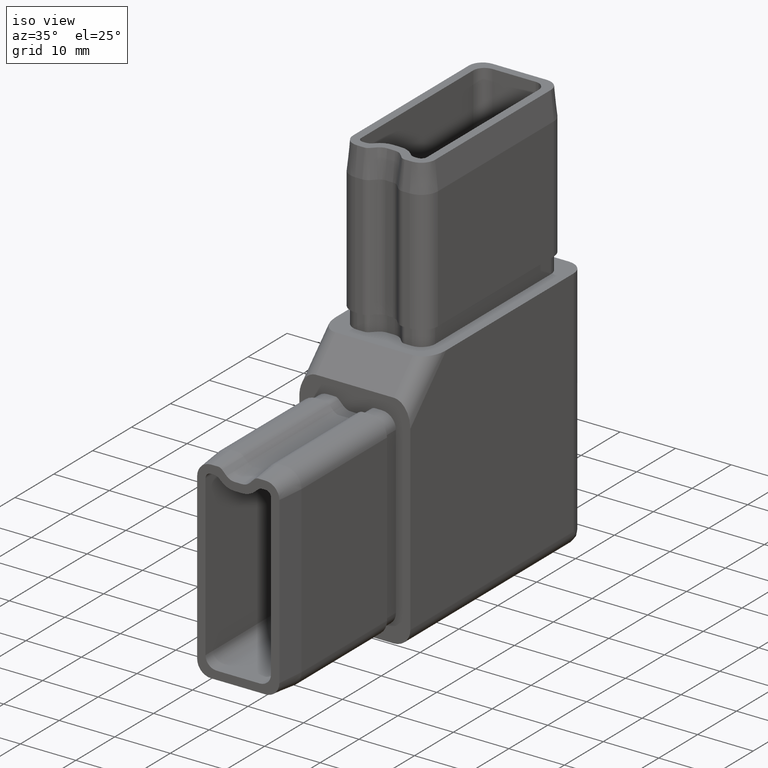
[diagram: clean part render]
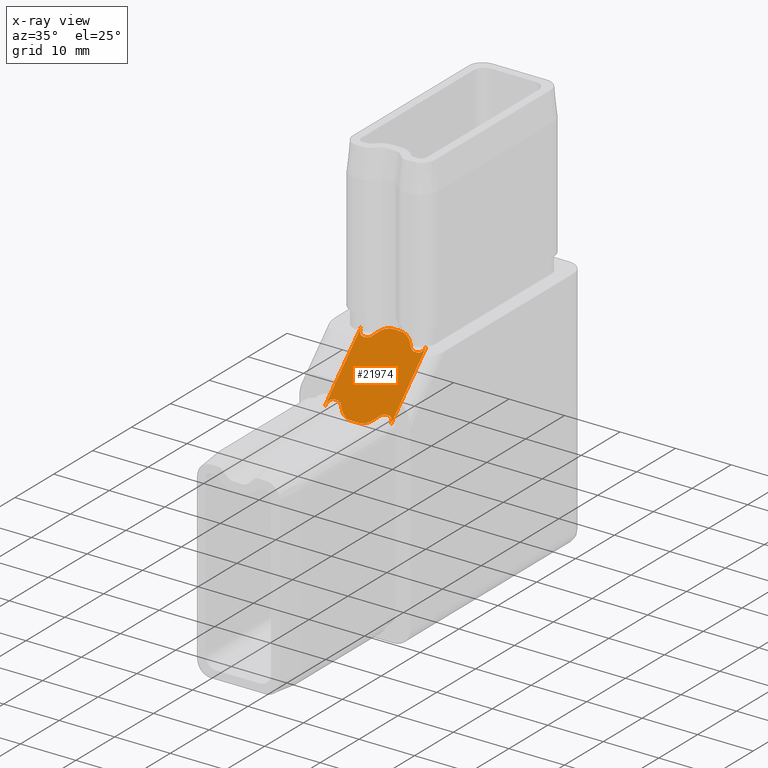
[diagram: x-ray — body ghosted, one internal face saturated and labeled with its STEP entity id]
A machine part, iso view, then the same camera in x-ray: the body is ghosted and one INTERNAL B-rep face — a face not visible from any outside direction — is saturated and labeled: STEP entity #21974.
In plain terms, the highlighted planar face has unit normal (0, 0.7071, -0.7071).
Its self-contained STEP definition (entity closure, byte-faithful):
#25 = CARTESIAN_POINT ( 'NONE',  ( -0.6804040507106343700, -22.50000000000000000, 11.70172439427027700 ) ) ;
#68 = CARTESIAN_POINT ( 'NONE',  ( -1.621067907937050200, -11.70172439427028300, 22.49999999999999300 ) ) ;
#142 = VERTEX_POINT ( 'NONE', #11667 ) ;
#257 = VERTEX_POINT ( 'NONE', #12083 ) ;
#291 = DIRECTION ( 'NONE',  ( -1.000000000000000000, 0.0000000000000000000, 0.0000000000000000000 ) ) ;
#301 = CARTESIAN_POINT ( 'NONE',  ( 3.155277784863547400, -12.72685066011736200, 21.47487373415291900 ) ) ;
#310 = CARTESIAN_POINT ( 'NONE',  ( -2.490127992601655300, -12.06170086785547100, 22.14002352641480400 ) ) ;
#371 = DIRECTION ( 'NONE',  ( 0.0000000000000000000, 0.7071067811865465700, -0.7071067811865485700 ) ) ;
#447 = LINE ( 'NONE', #10027, #1993 ) ;
#773 = CARTESIAN_POINT ( 'NONE',  ( 4.046605815208793400, -20.80172439427031300, 13.39999999999999300 ) ) ;
#869 = EDGE_LOOP ( 'NONE', ( #2413, #22524, #17498, #4890, #16082, #25160, #22806, #15998, #1588, #6562, #19176, #6417, #16338, #19762, #24643, #20544, #14632, #12390, #19595, #18794, #5408, #14240, #21887, #22821 ) ) ;
#1073 = CARTESIAN_POINT ( 'NONE',  ( -4.900000000000001200, -20.80172439427030500, 13.39999999999999700 ) ) ;
#1356 = DIRECTION ( 'NONE',  ( -0.0000000000000000000, 0.7071067811865485700, 0.7071067811865465700 ) ) ;
#1394 = VERTEX_POINT ( 'NONE', #22043 ) ;
#1423 = CARTESIAN_POINT ( 'NONE',  ( 9.999999999999991100, -20.80172439427035900, 13.39999999999994000 ) ) ;
#1528 = VECTOR ( 'NONE', #1684, 1000.000000000000000 ) ;
#1549 = FACE_OUTER_BOUND ( 'NONE', #869, .T. ) ;
#1588 = ORIENTED_EDGE ( 'NONE', *, *, #2659, .T. ) ;
#1592 = VECTOR ( 'NONE', #16764, 1000.000000000000000 ) ;
#1596 = VECTOR ( 'NONE', #9726, 1000.000000000000000 ) ;
#1684 = DIRECTION ( 'NONE',  ( 1.000000000000000000, -3.852778949292155600E-015, -3.852778949292144500E-015 ) ) ;
#1755 =( BOUNDED_CURVE ( )  B_SPLINE_CURVE ( 3, ( #22926, #7392, #13044, #20734 ),
 .UNSPECIFIED., .F., .T. ) 
 B_SPLINE_CURVE_WITH_KNOTS ( ( 4, 4 ),
 ( 0.0000000000000000000, 0.7853981633974466100 ),
 .UNSPECIFIED. ) 
 CURVE ( )  GEOMETRIC_REPRESENTATION_ITEM ( )  RATIONAL_B_SPLINE_CURVE ( ( 1.000000000000000000, 0.9492530216741912300, 0.9492530216741912300, 1.000000000000000000 ) ) 
 REPRESENTATION_ITEM ( '' )  );
#1846 = EDGE_CURVE ( 'NONE', #21841, #257, #23861, .T. ) ;
#1882 = EDGE_CURVE ( 'NONE', #4354, #12554, #16616, .T. ) ;
#1947 = CARTESIAN_POINT ( 'NONE',  ( -4.046605815208791600, -20.80172439427030900, 13.39999999999999300 ) ) ;
#1993 = VECTOR ( 'NONE', #17848, 1000.000000000000000 ) ;
#2301 = CARTESIAN_POINT ( 'NONE',  ( 5.900000000000002100, -21.21593795664339800, 12.98578643762690100 ) ) ;
#2319 = VECTOR ( 'NONE', #15598, 1000.000000000000000 ) ;
#2406 = EDGE_CURVE ( 'NONE', #23328, #7196, #9807, .T. ) ;
#2413 = ORIENTED_EDGE ( 'NONE', *, *, #13156, .F. ) ;
#2505 = CARTESIAN_POINT ( 'NONE',  ( 3.674151493209678600, -13.24572436846349000, 20.95600002580679100 ) ) ;
#2545 = CARTESIAN_POINT ( 'NONE',  ( 4.449747468305827300, -13.39999999999999700, 20.80172439427028400 ) ) ;
#2556 = CARTESIAN_POINT ( 'NONE',  ( -4.449747468305827300, -20.80172439427030900, 13.39999999999999500 ) ) ;
#2659 = EDGE_CURVE ( 'NONE', #257, #14278, #5185, .T. ) ;
#2859 =( BOUNDED_CURVE ( )  B_SPLINE_CURVE ( 3, ( #4838, #16293, #24161, #1073 ),
 .UNSPECIFIED., .F., .F. ) 
 B_SPLINE_CURVE_WITH_KNOTS ( ( 4, 4 ),
 ( 1.570796326794896600, 3.141592653589792200 ),
 .UNSPECIFIED. ) 
 CURVE ( )  GEOMETRIC_REPRESENTATION_ITEM ( )  RATIONAL_B_SPLINE_CURVE ( ( 1.000000000000000000, 0.8047378541243652700, 0.8047378541243652700, 1.000000000000000000 ) ) 
 REPRESENTATION_ITEM ( '' )  );
#3042 = EDGE_CURVE ( 'NONE', #13627, #12554, #11622, .T. ) ;
#3180 =( BOUNDED_CURVE ( )  B_SPLINE_CURVE ( 3, ( #20448, #20522, #773, #16669 ),
 .UNSPECIFIED., .F., .F. ) 
 B_SPLINE_CURVE_WITH_KNOTS ( ( 4, 4 ),
 ( 2.356194490192346600, 3.141592653589793100 ),
 .UNSPECIFIED. ) 
 CURVE ( )  GEOMETRIC_REPRESENTATION_ITEM ( )  RATIONAL_B_SPLINE_CURVE ( ( 1.000000000000000000, 0.9492530216741912300, 0.9492530216741912300, 1.000000000000000000 ) ) 
 REPRESENTATION_ITEM ( '' )  );
#3828 = CARTESIAN_POINT ( 'NONE',  ( -0.0000000000000000000, -11.70172439427028300, 22.49999999999999600 ) ) ;
#3900 = CARTESIAN_POINT ( 'NONE',  ( 5.900000000000000400, -17.10086219713512200, 17.10086219713517200 ) ) ;
#4282 = CARTESIAN_POINT ( 'NONE',  ( 5.485786437626906300, -13.40000000000000200, 20.80172439427028100 ) ) ;
#4284 = CARTESIAN_POINT ( 'NONE',  ( 3.389087296526010800, -21.24106422249049000, 12.96066017177981400 ) ) ;
#4354 = VERTEX_POINT ( 'NONE', #13589 ) ;
#4458 = CARTESIAN_POINT ( 'NONE',  ( 4.449747468305827300, -13.39999999999999700, 20.80172439427028400 ) ) ;
#4607 = VERTEX_POINT ( 'NONE', #2556 ) ;
#4688 = LINE ( 'NONE', #15036, #24874 ) ;
#4763 = EDGE_CURVE ( 'NONE', #23140, #11035, #20126, .T. ) ;
#4824 = CARTESIAN_POINT ( 'NONE',  ( -4.900000000000001200, -13.40000000000000200, 20.80172439427027700 ) ) ;
#4838 = CARTESIAN_POINT ( 'NONE',  ( -5.900000000000000400, -21.80172439427030500, 12.39999999999999700 ) ) ;
#4861 = AXIS2_PLACEMENT_3D ( 'NONE', #23799, #371, #291 ) ;
#4890 = ORIENTED_EDGE ( 'NONE', *, *, #23095, .F. ) ;
#5185 =( BOUNDED_CURVE ( )  B_SPLINE_CURVE ( 3, ( #5980, #21774, #19895, #18089 ),
 .UNSPECIFIED., .F., .F. ) 
 B_SPLINE_CURVE_WITH_KNOTS ( ( 4, 4 ),
 ( 3.141592653589793100, 3.926990816987242700 ),
 .UNSPECIFIED. ) 
 CURVE ( )  GEOMETRIC_REPRESENTATION_ITEM ( )  RATIONAL_B_SPLINE_CURVE ( ( 1.000000000000000000, 0.9492530216741910100, 0.9492530216741910100, 1.000000000000000000 ) ) 
 REPRESENTATION_ITEM ( '' )  );
#5402 = CARTESIAN_POINT ( 'NONE',  ( 3.389087296526011300, -12.96066017177982100, 21.24106422249046100 ) ) ;
#5408 = ORIENTED_EDGE ( 'NONE', *, *, #13492, .F. ) ;
#5554 = CARTESIAN_POINT ( 'NONE',  ( 3.155277784863547400, -12.72685066011736200, 21.47487373415291900 ) ) ;
#5589 = VERTEX_POINT ( 'NONE', #23464 ) ;
#5604 = CARTESIAN_POINT ( 'NONE',  ( -3.389087296526008200, -21.24106422249049000, 12.96066017177981400 ) ) ;
#5820 = VECTOR ( 'NONE', #15005, 1000.000000000000100 ) ;
#5980 = CARTESIAN_POINT ( 'NONE',  ( -4.449747468305827300, -13.40000000000000000, 20.80172439427027700 ) ) ;
#6417 = ORIENTED_EDGE ( 'NONE', *, *, #3042, .F. ) ;
#6562 = ORIENTED_EDGE ( 'NONE', *, *, #16766, .T. ) ;
#7196 = VERTEX_POINT ( 'NONE', #5402 ) ;
#7392 = CARTESIAN_POINT ( 'NONE',  ( 1.621067907937049600, -22.50000000000002800, 11.70172439427027700 ) ) ;
#7419 = LINE ( 'NONE', #22576, #1592 ) ;
#7484 = CARTESIAN_POINT ( 'NONE',  ( -3.155277784863550500, -21.47487373415294700, 12.72685066011735900 ) ) ;
#7527 = LINE ( 'NONE', #3900, #24020 ) ;
#7817 = LINE ( 'NONE', #15517, #2319 ) ;
#8215 = CARTESIAN_POINT ( 'NONE',  ( 5.900000000000000400, -12.40000000000000200, 21.80172439427027700 ) ) ;
#8264 =( BOUNDED_CURVE ( )  B_SPLINE_CURVE ( 3, ( #15263, #1947, #19204, #5604 ),
 .UNSPECIFIED., .F., .T. ) 
 B_SPLINE_CURVE_WITH_KNOTS ( ( 4, 4 ),
 ( 3.141592653589793100, 3.926990816987241000 ),
 .UNSPECIFIED. ) 
 CURVE ( )  GEOMETRIC_REPRESENTATION_ITEM ( )  RATIONAL_B_SPLINE_CURVE ( ( 1.000000000000000000, 0.9492530216741912300, 0.9492530216741912300, 1.000000000000000000 ) ) 
 REPRESENTATION_ITEM ( '' )  );
#8701 = EDGE_CURVE ( 'NONE', #17777, #11463, #447, .T. ) ;
#9295 = CARTESIAN_POINT ( 'NONE',  ( 6.686192881254304300, -17.94395863776226800, 16.25776575650802200 ) ) ;
#9311 = CARTESIAN_POINT ( 'NONE',  ( 9.999999999999952000, -13.39999999999994500, 20.80172439427033700 ) ) ;
#9579 = CARTESIAN_POINT ( 'NONE',  ( 0.6804040507106343700, -11.70172439427028300, 22.49999999999999300 ) ) ;
#9726 = DIRECTION ( 'NONE',  ( -1.000000000000000000, 0.0000000000000000000, -0.0000000000000000000 ) ) ;
#9807 = LINE ( 'NONE', #17154, #5820 ) ;
#9865 = VERTEX_POINT ( 'NONE', #19673 ) ;
#9997 = EDGE_CURVE ( 'NONE', #15854, #9865, #4688, .T. ) ;
#10027 = CARTESIAN_POINT ( 'NONE',  ( 10.00000000000014400, -13.40000000000006300, 20.80172439427021700 ) ) ;
#10347 = EDGE_CURVE ( 'NONE', #15854, #24625, #2859, .T. ) ;
#10732 = CARTESIAN_POINT ( 'NONE',  ( -5.900000000000000400, -12.98578643762690800, 21.21593795664336900 ) ) ;
#10736 = CARTESIAN_POINT ( 'NONE',  ( -1.621067907937050200, -22.50000000000002800, 11.70172439427027600 ) ) ;
#10824 = CARTESIAN_POINT ( 'NONE',  ( -2.490127992601655300, -22.14002352641482900, 12.06170086785546600 ) ) ;
#11035 = VERTEX_POINT ( 'NONE', #4284 ) ;
#11463 = VERTEX_POINT ( 'NONE', #15450 ) ;
#11466 = CARTESIAN_POINT ( 'NONE',  ( 1.621067907937049600, -11.70172439427028300, 22.49999999999999300 ) ) ;
#11622 = LINE ( 'NONE', #3828, #20171 ) ;
#11667 = CARTESIAN_POINT ( 'NONE',  ( -3.389087296526008200, -21.24106422249049000, 12.96066017177981400 ) ) ;
#11948 = LINE ( 'NONE', #1423, #1528 ) ;
#12020 = PLANE ( 'NONE',  #4861 ) ;
#12083 = CARTESIAN_POINT ( 'NONE',  ( -4.449747468305827300, -13.40000000000000000, 20.80172439427027700 ) ) ;
#12106 = EDGE_CURVE ( 'NONE', #5589, #20054, #7527, .T. ) ;
#12390 = ORIENTED_EDGE ( 'NONE', *, *, #12106, .T. ) ;
#12392 = VERTEX_POINT ( 'NONE', #21372 ) ;
#12554 = VERTEX_POINT ( 'NONE', #23670 ) ;
#13044 = CARTESIAN_POINT ( 'NONE',  ( 2.490127992601653100, -22.14002352641482900, 12.06170086785546200 ) ) ;
#13072 = CARTESIAN_POINT ( 'NONE',  ( -3.155277784863550500, -21.47487373415294700, 12.72685066011735900 ) ) ;
#13145 = DIRECTION ( 'NONE',  ( 0.5773502691896351700, 0.5773502691896219600, 0.5773502691896201800 ) ) ;
#13156 = EDGE_CURVE ( 'NONE', #15493, #17211, #16478, .T. ) ;
#13475 = VECTOR ( 'NONE', #21178, 1000.000000000000000 ) ;
#13492 = EDGE_CURVE ( 'NONE', #11035, #1394, #3180, .T. ) ;
#13589 = CARTESIAN_POINT ( 'NONE',  ( -3.155277784863549600, -12.72685066011736200, 21.47487373415291500 ) ) ;
#13595 =( BOUNDED_CURVE ( )  B_SPLINE_CURVE ( 3, ( #14305, #2505, #24200, #4458 ),
 .UNSPECIFIED., .F., .T. ) 
 B_SPLINE_CURVE_WITH_KNOTS ( ( 4, 4 ),
 ( 2.356194490192346600, 3.141592653589793100 ),
 .UNSPECIFIED. ) 
 CURVE ( )  GEOMETRIC_REPRESENTATION_ITEM ( )  RATIONAL_B_SPLINE_CURVE ( ( 1.000000000000000000, 0.9492530216741912300, 0.9492530216741912300, 1.000000000000000000 ) ) 
 REPRESENTATION_ITEM ( '' )  );
#13627 = VERTEX_POINT ( 'NONE', #24451 ) ;
#13738 = EDGE_CURVE ( 'NONE', #13627, #23328, #24004, .T. ) ;
#13935 = CARTESIAN_POINT ( 'NONE',  ( 4.900000000000000400, -20.80172439427030500, 13.39999999999999900 ) ) ;
#14240 = ORIENTED_EDGE ( 'NONE', *, *, #4763, .F. ) ;
#14278 = VERTEX_POINT ( 'NONE', #15687 ) ;
#14305 = CARTESIAN_POINT ( 'NONE',  ( 3.389087296526011300, -12.96066017177982100, 21.24106422249046100 ) ) ;
#14318 = VECTOR ( 'NONE', #13145, 1000.000000000000000 ) ;
#14632 = ORIENTED_EDGE ( 'NONE', *, *, #24385, .T. ) ;
#14878 = LINE ( 'NONE', #22429, #24657 ) ;
#15005 = DIRECTION ( 'NONE',  ( 0.5773502691896362800, -0.5773502691896212900, -0.5773502691896197400 ) ) ;
#15036 = CARTESIAN_POINT ( 'NONE',  ( -5.900000000000000400, -19.60086219713515700, 14.60086219713514000 ) ) ;
#15263 = CARTESIAN_POINT ( 'NONE',  ( -4.449747468305827300, -20.80172439427030900, 13.39999999999999500 ) ) ;
#15450 = CARTESIAN_POINT ( 'NONE',  ( 4.900000000000000400, -13.40000000000000400, 20.80172439427027700 ) ) ;
#15493 = VERTEX_POINT ( 'NONE', #13072 ) ;
#15517 = CARTESIAN_POINT ( 'NONE',  ( -3.352859547920894000, -12.92443242317470700, 21.27729197109557200 ) ) ;
#15598 = DIRECTION ( 'NONE',  ( 0.5773502691896256200, 0.5773502691896267300, 0.5773502691896250600 ) ) ;
#15605 =( BOUNDED_CURVE ( )  B_SPLINE_CURVE ( 3, ( #15978, #4282, #19906, #8215 ),
 .UNSPECIFIED., .F., .T. ) 
 B_SPLINE_CURVE_WITH_KNOTS ( ( 4, 4 ),
 ( 3.141592653589793100, 4.712388980384689700 ),
 .UNSPECIFIED. ) 
 CURVE ( )  GEOMETRIC_REPRESENTATION_ITEM ( )  RATIONAL_B_SPLINE_CURVE ( ( 1.000000000000000000, 0.8047378541243649400, 0.8047378541243649400, 1.000000000000000000 ) ) 
 REPRESENTATION_ITEM ( '' )  );
#15687 = CARTESIAN_POINT ( 'NONE',  ( -3.389087296526005000, -12.96066017177982000, 21.24106422249046100 ) ) ;
#15851 = EDGE_CURVE ( 'NONE', #9865, #21841, #16160, .T. ) ;
#15854 = VERTEX_POINT ( 'NONE', #24475 ) ;
#15904 = EDGE_CURVE ( 'NONE', #142, #15493, #14878, .T. ) ;
#15978 = CARTESIAN_POINT ( 'NONE',  ( 4.900000000000000400, -13.40000000000000400, 20.80172439427027700 ) ) ;
#15998 = ORIENTED_EDGE ( 'NONE', *, *, #1846, .T. ) ;
#16082 = ORIENTED_EDGE ( 'NONE', *, *, #10347, .F. ) ;
#16160 =( BOUNDED_CURVE ( )  B_SPLINE_CURVE ( 3, ( #18760, #10732, #18498, #4824 ),
 .UNSPECIFIED., .F., .T. ) 
 B_SPLINE_CURVE_WITH_KNOTS ( ( 4, 4 ),
 ( 1.570796326794896600, 3.141592653589792200 ),
 .UNSPECIFIED. ) 
 CURVE ( )  GEOMETRIC_REPRESENTATION_ITEM ( )  RATIONAL_B_SPLINE_CURVE ( ( 1.000000000000000000, 0.8047378541243652700, 0.8047378541243652700, 1.000000000000000000 ) ) 
 REPRESENTATION_ITEM ( '' )  );
#16293 = CARTESIAN_POINT ( 'NONE',  ( -5.900000000000000400, -21.21593795664340500, 12.98578643762690100 ) ) ;
#16338 = ORIENTED_EDGE ( 'NONE', *, *, #13738, .T. ) ;
#16478 =( BOUNDED_CURVE ( )  B_SPLINE_CURVE ( 3, ( #7484, #10824, #10736, #16527 ),
 .UNSPECIFIED., .F., .F. ) 
 B_SPLINE_CURVE_WITH_KNOTS ( ( 4, 4 ),
 ( 5.497787143782138800, 6.283185307179586200 ),
 .UNSPECIFIED. ) 
 CURVE ( )  GEOMETRIC_REPRESENTATION_ITEM ( )  RATIONAL_B_SPLINE_CURVE ( ( 1.000000000000000000, 0.9492530216741912300, 0.9492530216741912300, 1.000000000000000000 ) ) 
 REPRESENTATION_ITEM ( '' )  );
#16527 = CARTESIAN_POINT ( 'NONE',  ( -0.6804040507106343700, -22.50000000000000000, 11.70172439427027700 ) ) ;
#16616 =( BOUNDED_CURVE ( )  B_SPLINE_CURVE ( 3, ( #25349, #310, #68, #17822 ),
 .UNSPECIFIED., .F., .F. ) 
 B_SPLINE_CURVE_WITH_KNOTS ( ( 4, 4 ),
 ( 5.497787143782138800, 6.283185307179586200 ),
 .UNSPECIFIED. ) 
 CURVE ( )  GEOMETRIC_REPRESENTATION_ITEM ( )  RATIONAL_B_SPLINE_CURVE ( ( 1.000000000000000000, 0.9492530216741912300, 0.9492530216741912300, 1.000000000000000000 ) ) 
 REPRESENTATION_ITEM ( '' )  );
#16669 = CARTESIAN_POINT ( 'NONE',  ( 4.449747468305827300, -20.80172439427030500, 13.39999999999999100 ) ) ;
#16699 = DIRECTION ( 'NONE',  ( 0.5773502691896245100, -0.5773502691896271700, -0.5773502691896255100 ) ) ;
#16764 = DIRECTION ( 'NONE',  ( 1.000000000000000000, 1.155833684787648700E-014, 1.155833684787645600E-014 ) ) ;
#16766 = EDGE_CURVE ( 'NONE', #14278, #4354, #7817, .T. ) ;
#17145 = EDGE_CURVE ( 'NONE', #24411, #23140, #1755, .T. ) ;
#17154 = CARTESIAN_POINT ( 'NONE',  ( 10.01952621458768200, -19.59109908984131800, 14.61062530442898000 ) ) ;
#17211 = VERTEX_POINT ( 'NONE', #25 ) ;
#17498 = ORIENTED_EDGE ( 'NONE', *, *, #21900, .F. ) ;
#17750 = CARTESIAN_POINT ( 'NONE',  ( -4.900000000000001200, -20.80172439427030500, 13.39999999999999700 ) ) ;
#17777 = VERTEX_POINT ( 'NONE', #2545 ) ;
#17822 = CARTESIAN_POINT ( 'NONE',  ( -0.6804040507106343700, -11.70172439427028300, 22.49999999999999600 ) ) ;
#17848 = DIRECTION ( 'NONE',  ( 1.000000000000000000, -1.155833684787645200E-014, -1.155833684787641900E-014 ) ) ;
#18089 = CARTESIAN_POINT ( 'NONE',  ( -3.389087296526005000, -12.96066017177982000, 21.24106422249046100 ) ) ;
#18283 = CARTESIAN_POINT ( 'NONE',  ( 0.6804040507106343700, -22.50000000000000000, 11.70172439427027700 ) ) ;
#18467 = EDGE_CURVE ( 'NONE', #7196, #17777, #13595, .T. ) ;
#18498 = CARTESIAN_POINT ( 'NONE',  ( -5.485786437626906300, -13.40000000000000200, 20.80172439427028100 ) ) ;
#18760 = CARTESIAN_POINT ( 'NONE',  ( -5.900000000000000400, -12.40000000000000200, 21.80172439427027700 ) ) ;
#18794 = ORIENTED_EDGE ( 'NONE', *, *, #19546, .F. ) ;
#19032 = CARTESIAN_POINT ( 'NONE',  ( 3.155277784863547400, -21.47487373415294700, 12.72685066011735900 ) ) ;
#19176 = ORIENTED_EDGE ( 'NONE', *, *, #1882, .T. ) ;
#19204 = CARTESIAN_POINT ( 'NONE',  ( -3.674151493209675900, -20.95600002580681200, 13.24572436846348600 ) ) ;
#19546 = EDGE_CURVE ( 'NONE', #1394, #12392, #7419, .T. ) ;
#19595 = ORIENTED_EDGE ( 'NONE', *, *, #22953, .F. ) ;
#19600 = DIRECTION ( 'NONE',  ( 0.0000000000000000000, -0.7071067811865485700, -0.7071067811865465700 ) ) ;
#19673 = CARTESIAN_POINT ( 'NONE',  ( -5.900000000000000400, -12.40000000000000200, 21.80172439427027700 ) ) ;
#19762 = ORIENTED_EDGE ( 'NONE', *, *, #2406, .T. ) ;
#19895 = CARTESIAN_POINT ( 'NONE',  ( -3.674151493209674200, -13.24572436846349000, 20.95600002580678700 ) ) ;
#19906 = CARTESIAN_POINT ( 'NONE',  ( 5.900000000000001200, -12.98578643762690600, 21.21593795664337600 ) ) ;
#19974 = CARTESIAN_POINT ( 'NONE',  ( 5.900000000000000400, -21.80172439427030500, 12.39999999999999900 ) ) ;
#20054 = VERTEX_POINT ( 'NONE', #21308 ) ;
#20126 = LINE ( 'NONE', #9295, #14318 ) ;
#20171 = VECTOR ( 'NONE', #23634, 1000.000000000000000 ) ;
#20448 = CARTESIAN_POINT ( 'NONE',  ( 3.389087296526010800, -21.24106422249049000, 12.96066017177981400 ) ) ;
#20522 = CARTESIAN_POINT ( 'NONE',  ( 3.674151493209678600, -20.95600002580681600, 13.24572436846348500 ) ) ;
#20544 = ORIENTED_EDGE ( 'NONE', *, *, #8701, .T. ) ;
#20686 = EDGE_CURVE ( 'NONE', #24411, #17211, #23006, .T. ) ;
#20734 = CARTESIAN_POINT ( 'NONE',  ( 3.155277784863547400, -21.47487373415294700, 12.72685066011735900 ) ) ;
#21178 = DIRECTION ( 'NONE',  ( 1.000000000000000000, 3.852778949292144500E-015, 3.852778949292133500E-015 ) ) ;
#21247 =( BOUNDED_CURVE ( )  B_SPLINE_CURVE ( 3, ( #13935, #21937, #2301, #19974 ),
 .UNSPECIFIED., .F., .T. ) 
 B_SPLINE_CURVE_WITH_KNOTS ( ( 4, 4 ),
 ( 3.141592653589793100, 4.712388980384688800 ),
 .UNSPECIFIED. ) 
 CURVE ( )  GEOMETRIC_REPRESENTATION_ITEM ( )  RATIONAL_B_SPLINE_CURVE ( ( 1.000000000000000000, 0.8047378541243652700, 0.8047378541243652700, 1.000000000000000000 ) ) 
 REPRESENTATION_ITEM ( '' )  );
#21308 = CARTESIAN_POINT ( 'NONE',  ( 5.900000000000000400, -21.80172439427030500, 12.39999999999999900 ) ) ;
#21333 = CARTESIAN_POINT ( 'NONE',  ( 0.0000000000000000000, -22.50000000000000000, 11.70172439427027700 ) ) ;
#21372 = CARTESIAN_POINT ( 'NONE',  ( 4.900000000000000400, -20.80172439427030500, 13.39999999999999900 ) ) ;
#21774 = CARTESIAN_POINT ( 'NONE',  ( -4.046605815208790700, -13.40000000000000000, 20.80172439427028100 ) ) ;
#21841 = VERTEX_POINT ( 'NONE', #22697 ) ;
#21887 = ORIENTED_EDGE ( 'NONE', *, *, #17145, .F. ) ;
#21900 = EDGE_CURVE ( 'NONE', #4607, #142, #8264, .T. ) ;
#21937 = CARTESIAN_POINT ( 'NONE',  ( 5.485786437626906300, -20.80172439427030500, 13.39999999999999700 ) ) ;
#21974 = ADVANCED_FACE ( 'NONE', ( #1549 ), #12020, .T. ) ;
#22043 = CARTESIAN_POINT ( 'NONE',  ( 4.449747468305827300, -20.80172439427030500, 13.39999999999999100 ) ) ;
#22429 = CARTESIAN_POINT ( 'NONE',  ( -0.01952621458757748700, -24.61062530442893600, 9.591099089841375000 ) ) ;
#22524 = ORIENTED_EDGE ( 'NONE', *, *, #15904, .F. ) ;
#22576 = CARTESIAN_POINT ( 'NONE',  ( 10.00000000000002800, -20.80172439427024100, 13.40000000000005700 ) ) ;
#22697 = CARTESIAN_POINT ( 'NONE',  ( -4.900000000000001200, -13.40000000000000200, 20.80172439427027700 ) ) ;
#22806 = ORIENTED_EDGE ( 'NONE', *, *, #15851, .T. ) ;
#22821 = ORIENTED_EDGE ( 'NONE', *, *, #20686, .T. ) ;
#22926 = CARTESIAN_POINT ( 'NONE',  ( 0.6804040507106343700, -22.50000000000000000, 11.70172439427027700 ) ) ;
#22953 = EDGE_CURVE ( 'NONE', #12392, #20054, #21247, .T. ) ;
#23006 = LINE ( 'NONE', #21333, #1596 ) ;
#23095 = EDGE_CURVE ( 'NONE', #24625, #4607, #11948, .T. ) ;
#23140 = VERTEX_POINT ( 'NONE', #19032 ) ;
#23239 = CARTESIAN_POINT ( 'NONE',  ( 2.490127992601653100, -12.06170086785546900, 22.14002352641480400 ) ) ;
#23328 = VERTEX_POINT ( 'NONE', #301 ) ;
#23464 = CARTESIAN_POINT ( 'NONE',  ( 5.900000000000000400, -12.40000000000000200, 21.80172439427027700 ) ) ;
#23634 = DIRECTION ( 'NONE',  ( -1.000000000000000000, 0.0000000000000000000, 0.0000000000000000000 ) ) ;
#23670 = CARTESIAN_POINT ( 'NONE',  ( -0.6804040507106343700, -11.70172439427028300, 22.49999999999999600 ) ) ;
#23799 = CARTESIAN_POINT ( 'NONE',  ( 10.00000000000000000, -19.60086219713515700, 14.60086219713514000 ) ) ;
#23861 = LINE ( 'NONE', #9311, #13475 ) ;
#24004 =( BOUNDED_CURVE ( )  B_SPLINE_CURVE ( 3, ( #9579, #11466, #23239, #5554 ),
 .UNSPECIFIED., .F., .F. ) 
 B_SPLINE_CURVE_WITH_KNOTS ( ( 4, 4 ),
 ( 0.0000000000000000000, 0.7853981633974466100 ),
 .UNSPECIFIED. ) 
 CURVE ( )  GEOMETRIC_REPRESENTATION_ITEM ( )  RATIONAL_B_SPLINE_CURVE ( ( 1.000000000000000000, 0.9492530216741912300, 0.9492530216741912300, 1.000000000000000000 ) ) 
 REPRESENTATION_ITEM ( '' )  );
#24020 = VECTOR ( 'NONE', #19600, 1000.000000000000000 ) ;
#24161 = CARTESIAN_POINT ( 'NONE',  ( -5.485786437626906300, -20.80172439427030500, 13.39999999999999700 ) ) ;
#24200 = CARTESIAN_POINT ( 'NONE',  ( 4.046605815208793400, -13.39999999999999500, 20.80172439427028100 ) ) ;
#24385 = EDGE_CURVE ( 'NONE', #11463, #5589, #15605, .T. ) ;
#24411 = VERTEX_POINT ( 'NONE', #18283 ) ;
#24451 = CARTESIAN_POINT ( 'NONE',  ( 0.6804040507106343700, -11.70172439427028300, 22.49999999999999300 ) ) ;
#24475 = CARTESIAN_POINT ( 'NONE',  ( -5.900000000000000400, -21.80172439427030500, 12.39999999999999700 ) ) ;
#24625 = VERTEX_POINT ( 'NONE', #17750 ) ;
#24643 = ORIENTED_EDGE ( 'NONE', *, *, #18467, .T. ) ;
#24657 = VECTOR ( 'NONE', #16699, 1000.000000000000100 ) ;
#24874 = VECTOR ( 'NONE', #1356, 1000.000000000000000 ) ;
#25160 = ORIENTED_EDGE ( 'NONE', *, *, #9997, .T. ) ;
#25349 = CARTESIAN_POINT ( 'NONE',  ( -3.155277784863549600, -12.72685066011736200, 21.47487373415291500 ) ) ;